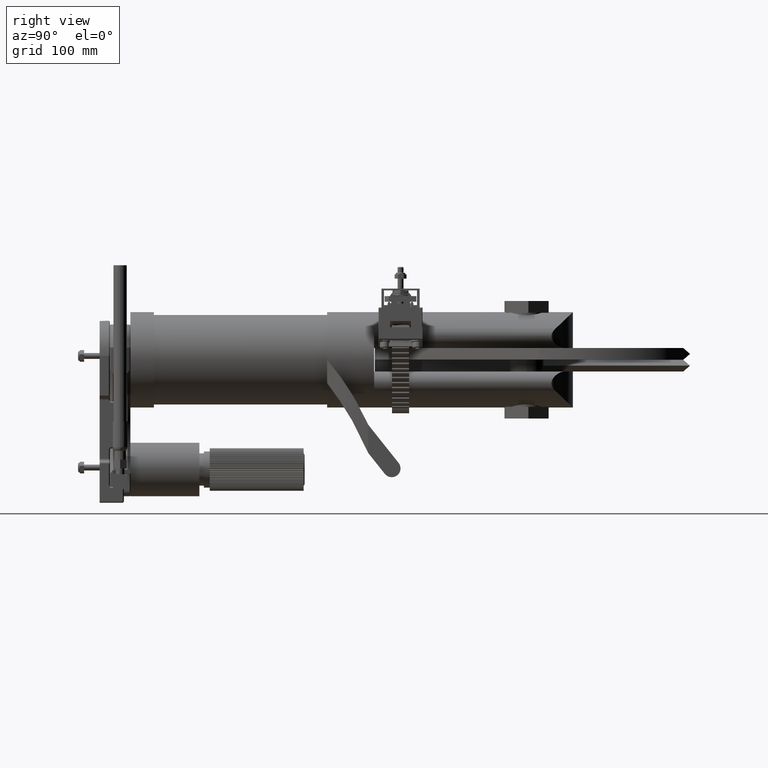
[diagram: clean part render]
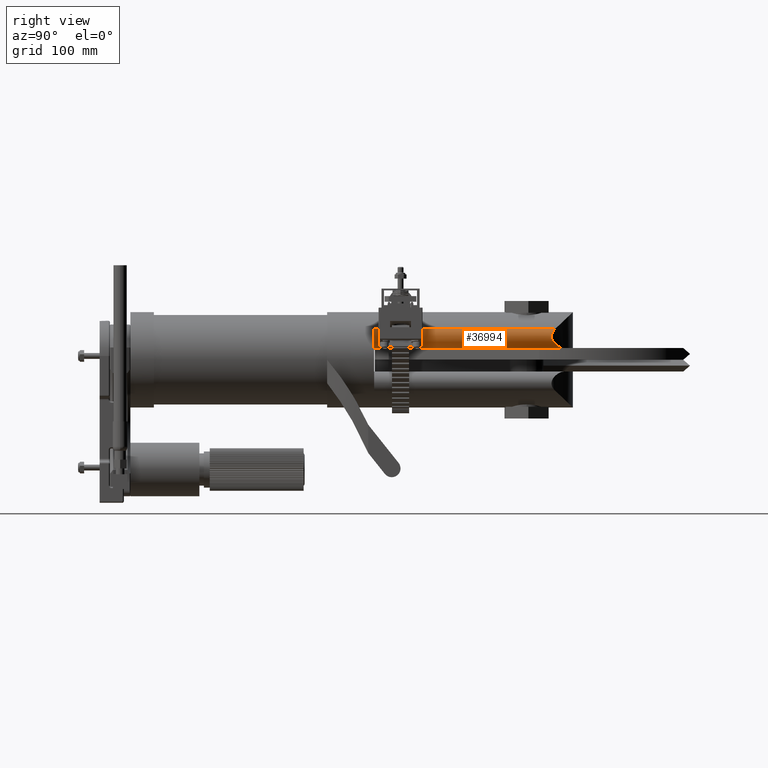
[diagram: same view with one face highlighted and labeled with its STEP entity id]
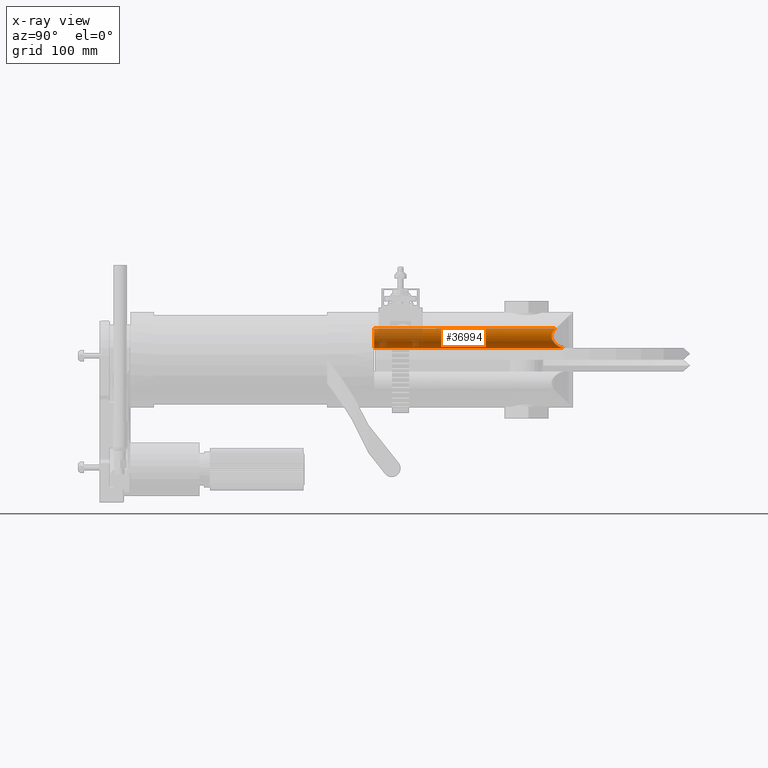
[diagram: x-ray of the same camera — body ghosted, the highlighted face saturated]
A machine part, right view. The second image highlights one B-rep face of the part: STEP entity #36994.
The next image is the same camera in x-ray: the body ghosted, the highlighted face saturated — about 19% of this face is hidden behind the body in this view.
In plain terms, the highlighted cylindrical surface (edge-blend (fillet) strip) has radius 12.7 mm, axis along (-0, -1, 0).
Its self-contained STEP definition (entity closure, byte-faithful):
#9971 = FACE_OUTER_BOUND ( 'NONE', #59537, .T. ) ;
#9980 = CYLINDRICAL_SURFACE ( 'NONE', #14188, 0.5000000000000001100 ) ;
#14188 = AXIS2_PLACEMENT_3D ( 'NONE', #19518, #19517, #19512 ) ;
#14687 = AXIS2_PLACEMENT_3D ( 'NONE', #25196, #25202, #25203 ) ;
#15702 = B_SPLINE_CURVE_WITH_KNOTS ( 'NONE', 3,
 ( #25280, #25284, #25285, #25286, #25287, #25288, #25289, #25290, #25291, #25292, #25293, #25294, #25295, #25296, #25297, #25298, #25299, #25300, #25301, #25302, #25303, #25304, #25305, #25306, #25307, #25308, #25309, #25310, #25311, #25312, #25313, #25314, #25315, #25316, #25317, #25318, #25319, #25320, #25321, #25322 ),
 .UNSPECIFIED., .F., .F.,
 ( 4, 2, 2, 2, 2, 2, 2, 2, 2, 2, 2, 2, 2, 2, 2, 2, 2, 2, 2, 4 ),
 ( 1.551583845779545700E-017, 0.002163708106913376500, 0.004327416213826737300, 0.005409270267283464300, 0.006491124320740191400, 0.007572978374196917600, 0.008654832427653644600, 0.009736686481110369900, 0.01081854053456709700, 0.01190039458802382200, 0.01298224864148055100, 0.01514595674839400000, 0.01622781080185068500, 0.01730966485530737600, 0.01947337296222068400, 0.02163708106913399600, 0.02596449728296051600, 0.02812820538987376900, 0.03029191349678702100, 0.03461932971061341300 ),
 .UNSPECIFIED. ) ;
#19512 = DIRECTION ( 'NONE',  ( 0.0000000000000000000, 0.0000000000000000000, -1.000000000000000000 ) ) ;
#19517 = DIRECTION ( 'NONE',  ( -0.0000000000000000000, -1.000000000000000000, -0.0000000000000000000 ) ) ;
#19518 = CARTESIAN_POINT ( 'NONE',  ( -1.159623457204966800, 10.25000000000000000, -3.156250000000000400 ) ) ;
#22319 = CARTESIAN_POINT ( 'NONE',  ( -1.538276014659649900, 10.25000000000000000, -3.482780612244898300 ) ) ;
#22320 = DIRECTION ( 'NONE',  ( 0.0000000000000000000, 1.000000000000000000, 0.0000000000000000000 ) ) ;
#23910 = LINE ( 'NONE', #22319, #23912 ) ;
#23912 = VECTOR ( 'NONE', #22320, 39.37007874015748100 ) ;
#23956 = LINE ( 'NONE', #25124, #23959 ) ;
#23959 = VECTOR ( 'NONE', #25125, 39.37007874015748100 ) ;
#24033 = CIRCLE ( 'NONE', #14687, 0.5000000000000001100 ) ;
#25124 = CARTESIAN_POINT ( 'NONE',  ( -1.159623457204966800, 11.24999999999999800, -2.656250000000000400 ) ) ;
#25125 = DIRECTION ( 'NONE',  ( -0.0000000000000000000, -1.000000000000000000, -6.457728036936167600E-017 ) ) ;
#25196 = CARTESIAN_POINT ( 'NONE',  ( -1.159623457204966800, 11.24999999999999800, -3.156250000000000400 ) ) ;
#25202 = DIRECTION ( 'NONE',  ( -0.0000000000000000000, -1.000000000000000000, -0.0000000000000000000 ) ) ;
#25203 = DIRECTION ( 'NONE',  ( 0.0000000000000000000, 0.0000000000000000000, -1.000000000000000000 ) ) ;
#25280 = CARTESIAN_POINT ( 'NONE',  ( -1.538276014659649700, 18.97065110300615500, -3.482780612244898800 ) ) ;
#25284 = CARTESIAN_POINT ( 'NONE',  ( -1.552767597703342600, 18.95250818453130700, -3.465975832615400000 ) ) ;
#25285 = CARTESIAN_POINT ( 'NONE',  ( -1.566274938811354800, 18.93493746070458200, -3.448071539838059300 ) ) ;
#25286 = CARTESIAN_POINT ( 'NONE',  ( -1.591265684997882300, 18.90139346949321100, -3.409647367374040600 ) ) ;
#25287 = CARTESIAN_POINT ( 'NONE',  ( -1.602754139691013400, 18.88541059046381700, -3.389138754277232200 ) ) ;
#25288 = CARTESIAN_POINT ( 'NONE',  ( -1.618258171888158600, 18.86325247661887900, -3.355761132257840900 ) ) ;
#25289 = CARTESIAN_POINT ( 'NONE',  ( -1.623135425346414800, 18.85617252351105200, -3.344180064862333400 ) ) ;
#25290 = CARTESIAN_POINT ( 'NONE',  ( -1.632072321794864300, 18.84304042871889400, -3.320424066884012100 ) ) ;
#25291 = CARTESIAN_POINT ( 'NONE',  ( -1.636156046761704500, 18.83695419546318200, -3.308201992795424000 ) ) ;
#25292 = CARTESIAN_POINT ( 'NONE',  ( -1.643480468971545600, 18.82592995358000800, -3.282958757347183900 ) ) ;
#25293 = CARTESIAN_POINT ( 'NONE',  ( -1.646721814658905800, 18.82099102917062800, -3.269938225820735700 ) ) ;
#25294 = CARTESIAN_POINT ( 'NONE',  ( -1.652243332243657400, 18.81251718163201000, -3.242941875290922500 ) ) ;
#25295 = CARTESIAN_POINT ( 'NONE',  ( -1.654470671147340500, 18.80906416509071700, -3.229205557988269200 ) ) ;
#25296 = CARTESIAN_POINT ( 'NONE',  ( -1.657779463789217100, 18.80391657027224600, -3.201381714923565300 ) ) ;
#25297 = CARTESIAN_POINT ( 'NONE',  ( -1.658866274228455700, 18.80221403728962000, -3.187269317068083000 ) ) ;
#25298 = CARTESIAN_POINT ( 'NONE',  ( -1.659823442651191500, 18.80071496720738000, -3.158608588670392100 ) ) ;
#25299 = CARTESIAN_POINT ( 'NONE',  ( -1.659678128609903200, 18.80094328099551900, -3.144116345899833100 ) ) ;
#25300 = CARTESIAN_POINT ( 'NONE',  ( -1.658182013079300100, 18.80328440299477000, -3.115737454779776300 ) ) ;
#25301 = CARTESIAN_POINT ( 'NONE',  ( -1.656837877775894500, 18.80538647238355300, -3.101720822956544100 ) ) ;
#25302 = CARTESIAN_POINT ( 'NONE',  ( -1.653012182112005600, 18.81132351783224600, -3.074011460936332700 ) ) ;
#25303 = CARTESIAN_POINT ( 'NONE',  ( -1.650507840628925700, 18.81519263248796000, -3.060247941110237700 ) ) ;
#25304 = CARTESIAN_POINT ( 'NONE',  ( -1.641620532359655300, 18.82877841981689200, -3.020550654590008900 ) ) ;
#25305 = CARTESIAN_POINT ( 'NONE',  ( -1.633857381626346200, 18.84048394480074200, -2.995818058120431900 ) ) ;
#25306 = CARTESIAN_POINT ( 'NONE',  ( -1.619942535011421400, 18.86081150018170800, -2.960634554880620800 ) ) ;
#25307 = CARTESIAN_POINT ( 'NONE',  ( -1.614917297887020100, 18.86806011223785300, -2.949236452524871300 ) ) ;
#25308 = CARTESIAN_POINT ( 'NONE',  ( -1.604345060823184800, 18.88307184709870900, -2.927405543050539500 ) ) ;
#25309 = CARTESIAN_POINT ( 'NONE',  ( -1.598775290705203500, 18.89086866173425200, -2.916912732793048900 ) ) ;
#25310 = CARTESIAN_POINT ( 'NONE',  ( -1.581277303769639500, 18.91496091147100600, -2.886519254551766200 ) ) ;
#25311 = CARTESIAN_POINT ( 'NONE',  ( -1.568566157394678300, 18.93194884718281700, -2.867692105678616000 ) ) ;
#25312 = CARTESIAN_POINT ( 'NONE',  ( -1.541181825151138200, 18.96720764082413500, -2.832347233318550200 ) ) ;
#25313 = CARTESIAN_POINT ( 'NONE',  ( -1.526454369980469800, 18.98553848796518300, -2.815805462781641100 ) ) ;
#25314 = CARTESIAN_POINT ( 'NONE',  ( -1.480321748964058800, 19.04077651176666900, -2.770216048616282600 ) ) ;
#25315 = CARTESIAN_POINT ( 'NONE',  ( -1.446714624927525100, 19.07827955233359100, -2.744701753165337300 ) ) ;
#25316 = CARTESIAN_POINT ( 'NONE',  ( -1.391736023778304300, 19.13470374459609100, -2.712885498767678700 ) ) ;
#25317 = CARTESIAN_POINT ( 'NONE',  ( -1.372564985908172800, 19.15362062585940000, -2.703349841462783200 ) ) ;
#25318 = CARTESIAN_POINT ( 'NONE',  ( -1.332884094512352600, 19.19114608318388800, -2.686735996152051200 ) ) ;
#25319 = CARTESIAN_POINT ( 'NONE',  ( -1.312527516803682100, 19.20961539244691000, -2.679710941708568100 ) ) ;
#25320 = CARTESIAN_POINT ( 'NONE',  ( -1.249855316400189800, 19.26409702839339700, -2.662555039865320600 ) ) ;
#25321 = CARTESIAN_POINT ( 'NONE',  ( -1.205954603338023100, 19.29918025531425800, -2.656250000000000900 ) ) ;
#25322 = CARTESIAN_POINT ( 'NONE',  ( -1.159623457204967100, 19.33294959085612100, -2.656250000000000000 ) ) ;
#29681 = CARTESIAN_POINT ( 'NONE',  ( -1.538276014659649900, 11.24999999999999800, -3.482780612244898300 ) ) ;
#29682 = CARTESIAN_POINT ( 'NONE',  ( -1.538276014659649700, 18.97065110300615500, -3.482780612244898800 ) ) ;
#29686 = CARTESIAN_POINT ( 'NONE',  ( -1.159623457204966800, 11.24999999999999800, -2.656250000000000400 ) ) ;
#29689 = CARTESIAN_POINT ( 'NONE',  ( -1.159623457204967100, 19.33294959085612100, -2.656250000000000000 ) ) ;
#36994 = ADVANCED_FACE ( 'NONE', ( #9971 ), #9980, .T. ) ;
#37518 = EDGE_CURVE ( 'NONE', #38960, #38961, #23910, .T. ) ;
#37535 = EDGE_CURVE ( 'NONE', #38968, #38965, #23956, .T. ) ;
#37554 = EDGE_CURVE ( 'NONE', #38965, #38960, #24033, .T. ) ;
#37559 = EDGE_CURVE ( 'NONE', #38961, #38968, #15702, .T. ) ;
#38960 = VERTEX_POINT ( 'NONE', #29681 ) ;
#38961 = VERTEX_POINT ( 'NONE', #29682 ) ;
#38965 = VERTEX_POINT ( 'NONE', #29686 ) ;
#38968 = VERTEX_POINT ( 'NONE', #29689 ) ;
#47746 = ORIENTED_EDGE ( 'NONE', *, *, #37559, .F. ) ;
#47747 = ORIENTED_EDGE ( 'NONE', *, *, #37518, .F. ) ;
#47748 = ORIENTED_EDGE ( 'NONE', *, *, #37554, .F. ) ;
#47749 = ORIENTED_EDGE ( 'NONE', *, *, #37535, .F. ) ;
#59537 = EDGE_LOOP ( 'NONE', ( #47746, #47747, #47748, #47749 ) ) ;